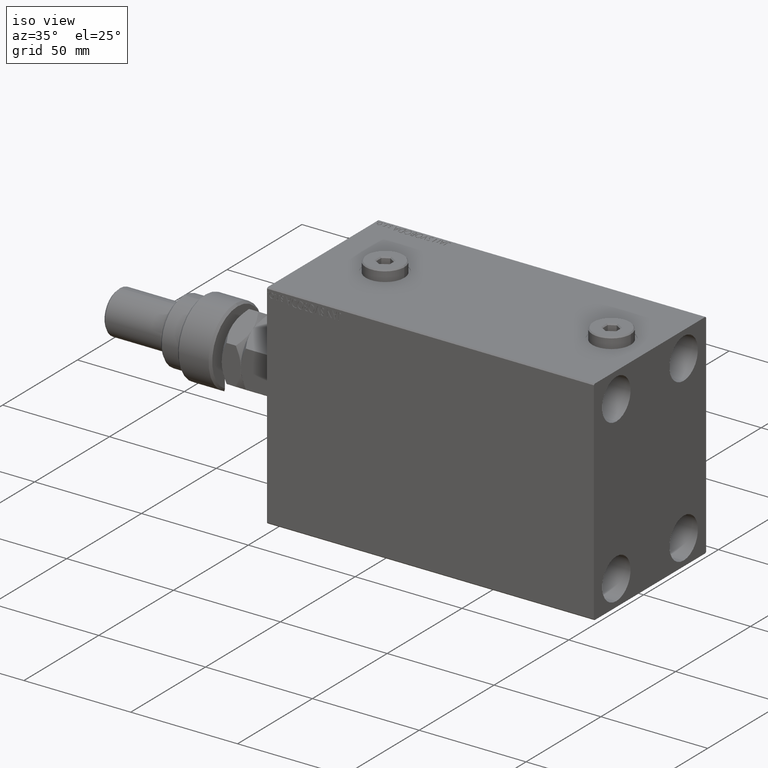
[diagram: clean part render]
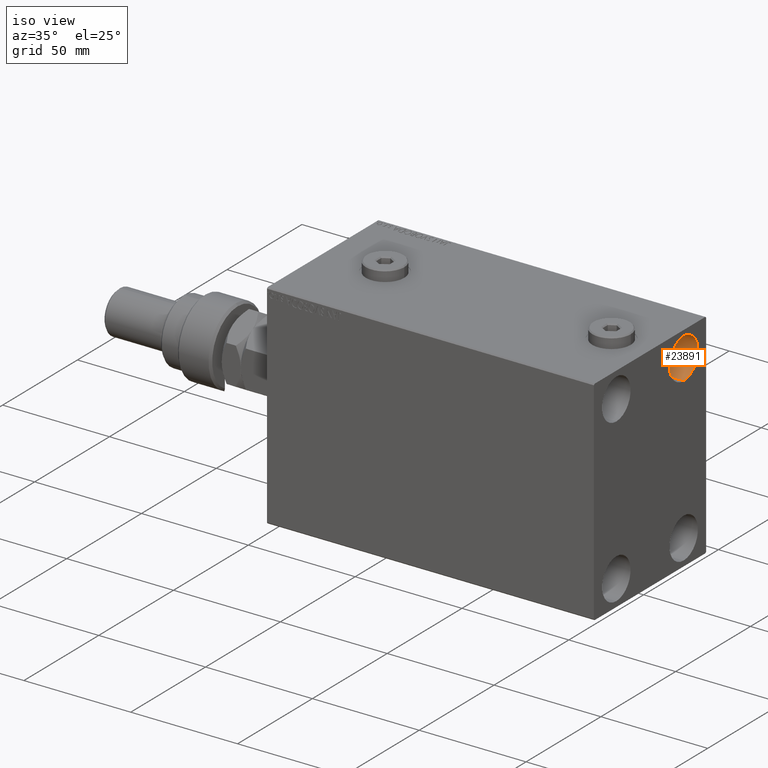
[diagram: same view with one face highlighted and labeled with its STEP entity id]
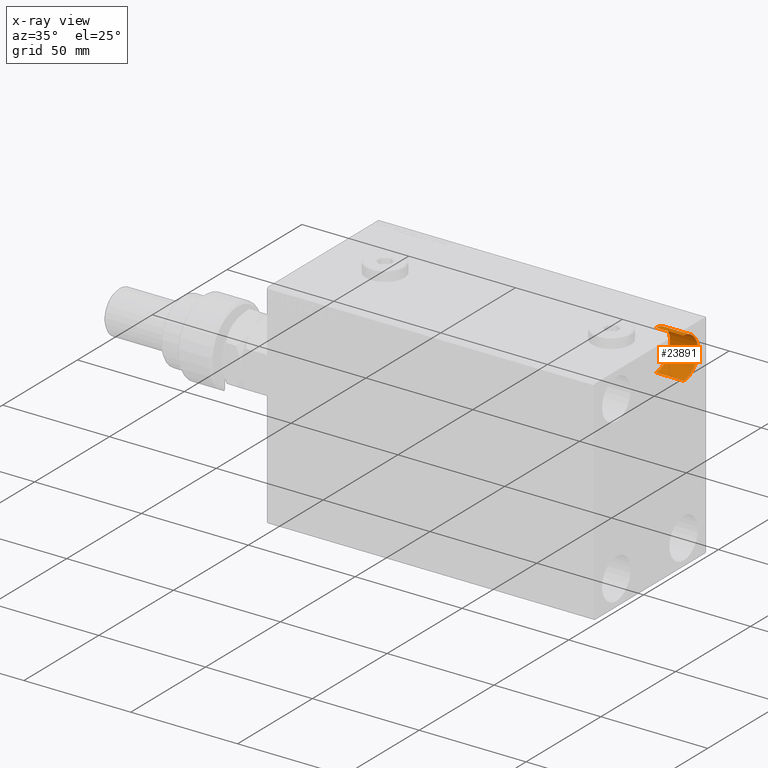
[diagram: x-ray of the same camera — body ghosted, the highlighted face saturated]
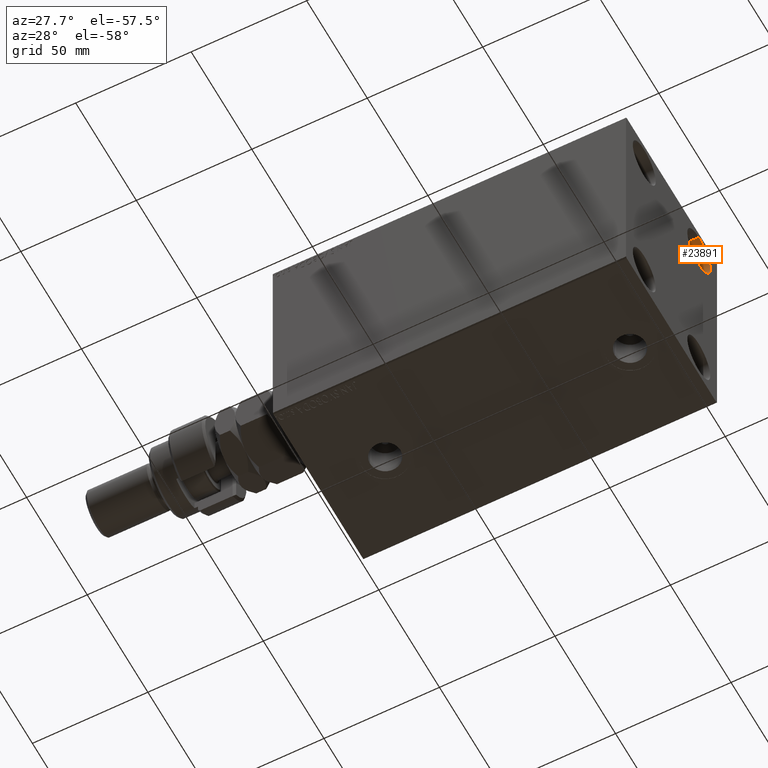
[diagram: same view with one face highlighted and labeled with its STEP entity id]
A machine part, iso view. The second image highlights one B-rep face of the part: STEP entity #23891.
The next image is the same camera in x-ray: the body ghosted, the highlighted face saturated — about 0% of this face is hidden behind the body in this view.
A second angle (auxiliary view) of the same face is appended — the face is thin or edge-on in the first view.
In plain terms, the highlighted cylindrical surface (edge-blend (fillet) strip) has radius 9.5 mm, axis along (1, 0, 0).
Its self-contained STEP definition (entity closure, byte-faithful):
#1165 = AXIS2_PLACEMENT_3D ( 'NONE', #30602, #19405, #34737 ) ;
#2269 = VERTEX_POINT ( 'NONE', #9308 ) ;
#3515 = VECTOR ( 'NONE', #7133, 1000.000000000000000 ) ;
#7133 = DIRECTION ( 'NONE',  ( 1.000000000000000000, -0.000000000000000000, -0.000000000000000000 ) ) ;
#8004 = EDGE_CURVE ( 'NONE', #28081, #23563, #44762, .T. ) ;
#9308 = CARTESIAN_POINT ( 'NONE',  ( 153.0000000000000000, 22.50000000000000355, 47.49999999999999289 ) ) ;
#9605 = EDGE_LOOP ( 'NONE', ( #21962, #33983, #12411, #30699 ) ) ;
#11379 = CARTESIAN_POINT ( 'NONE',  ( 139.9999999999999716, 22.50000000000000355, 28.49999999999998934 ) ) ;
#11440 = DIRECTION ( 'NONE',  ( 0.000000000000000000, 0.000000000000000000, 1.000000000000000000 ) ) ;
#12170 = AXIS2_PLACEMENT_3D ( 'NONE', #32127, #20915, #17267 ) ;
#12411 = ORIENTED_EDGE ( 'NONE', *, *, #8004, .T. ) ;
#12509 = CIRCLE ( 'NONE', #39762, 9.500000000000001776 ) ;
#14802 = CARTESIAN_POINT ( 'NONE',  ( 139.9999999999999716, 22.50000000000000355, 47.49999999999999289 ) ) ;
#15190 = CIRCLE ( 'NONE', #1165, 9.500000000000001776 ) ;
#17267 = DIRECTION ( 'NONE',  ( 0.000000000000000000, 0.000000000000000000, -1.000000000000000000 ) ) ;
#18526 = CARTESIAN_POINT ( 'NONE',  ( 153.0000000000000000, 22.50000000000000355, 37.99999999999999289 ) ) ;
#19405 = DIRECTION ( 'NONE',  ( -1.000000000000000000, -0.000000000000000000, -0.000000000000000000 ) ) ;
#20066 = EDGE_CURVE ( 'NONE', #45313, #28081, #15190, .T. ) ;
#20545 = EDGE_CURVE ( 'NONE', #45313, #2269, #21525, .T. ) ;
#20915 = DIRECTION ( 'NONE',  ( 1.000000000000000000, -0.000000000000000000, -0.000000000000000000 ) ) ;
#21525 = LINE ( 'NONE', #40514, #3515 ) ;
#21962 = ORIENTED_EDGE ( 'NONE', *, *, #20545, .F. ) ;
#23460 = VECTOR ( 'NONE', #33090, 1000.000000000000000 ) ;
#23563 = VERTEX_POINT ( 'NONE', #34858 ) ;
#23891 = ADVANCED_FACE ( 'NONE', ( #24093 ), #38442, .F. ) ;
#24093 = FACE_OUTER_BOUND ( 'NONE', #9605, .T. ) ;
#26089 = DIRECTION ( 'NONE',  ( -1.000000000000000000, -0.000000000000000000, -0.000000000000000000 ) ) ;
#28081 = VERTEX_POINT ( 'NONE', #28829 ) ;
#28829 = CARTESIAN_POINT ( 'NONE',  ( 139.9999999999999716, 22.50000000000000355, 28.49999999999998934 ) ) ;
#30602 = CARTESIAN_POINT ( 'NONE',  ( 139.9999999999999716, 22.50000000000000355, 37.99999999999999289 ) ) ;
#30699 = ORIENTED_EDGE ( 'NONE', *, *, #46086, .F. ) ;
#32127 = CARTESIAN_POINT ( 'NONE',  ( 139.9999999999999716, 22.50000000000000355, 37.99999999999999289 ) ) ;
#33090 = DIRECTION ( 'NONE',  ( 1.000000000000000000, -0.000000000000000000, -0.000000000000000000 ) ) ;
#33983 = ORIENTED_EDGE ( 'NONE', *, *, #20066, .T. ) ;
#34737 = DIRECTION ( 'NONE',  ( 0.000000000000000000, 0.000000000000000000, 1.000000000000000000 ) ) ;
#34858 = CARTESIAN_POINT ( 'NONE',  ( 153.0000000000000000, 22.50000000000000355, 28.49999999999998934 ) ) ;
#38442 = CYLINDRICAL_SURFACE ( 'NONE', #12170, 9.500000000000001776 ) ;
#39762 = AXIS2_PLACEMENT_3D ( 'NONE', #18526, #26089, #11440 ) ;
#40514 = CARTESIAN_POINT ( 'NONE',  ( 139.9999999999999716, 22.50000000000000355, 47.49999999999999289 ) ) ;
#44762 = LINE ( 'NONE', #11379, #23460 ) ;
#45313 = VERTEX_POINT ( 'NONE', #14802 ) ;
#46086 = EDGE_CURVE ( 'NONE', #2269, #23563, #12509, .T. ) ;